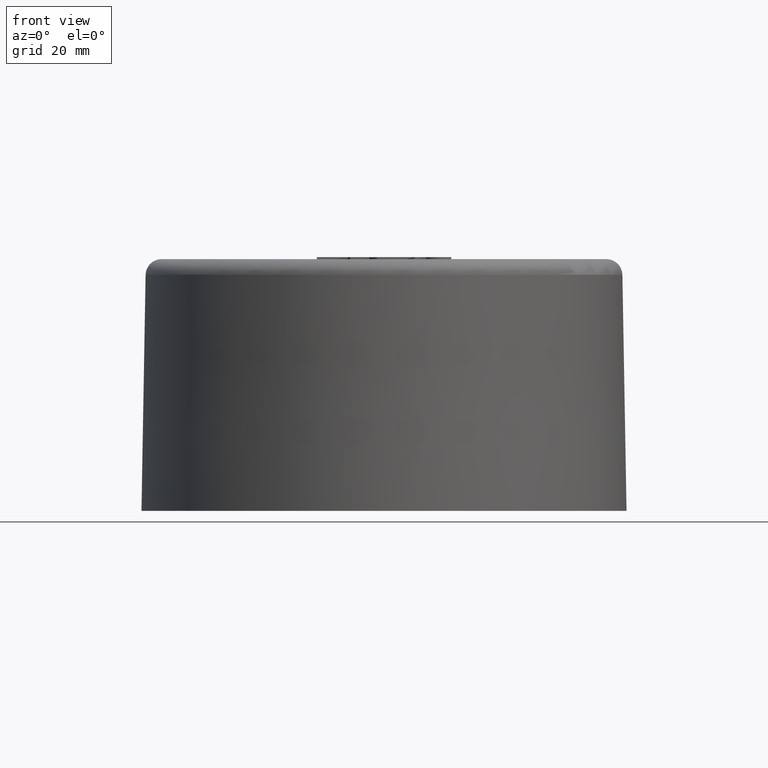
[diagram: clean part render]
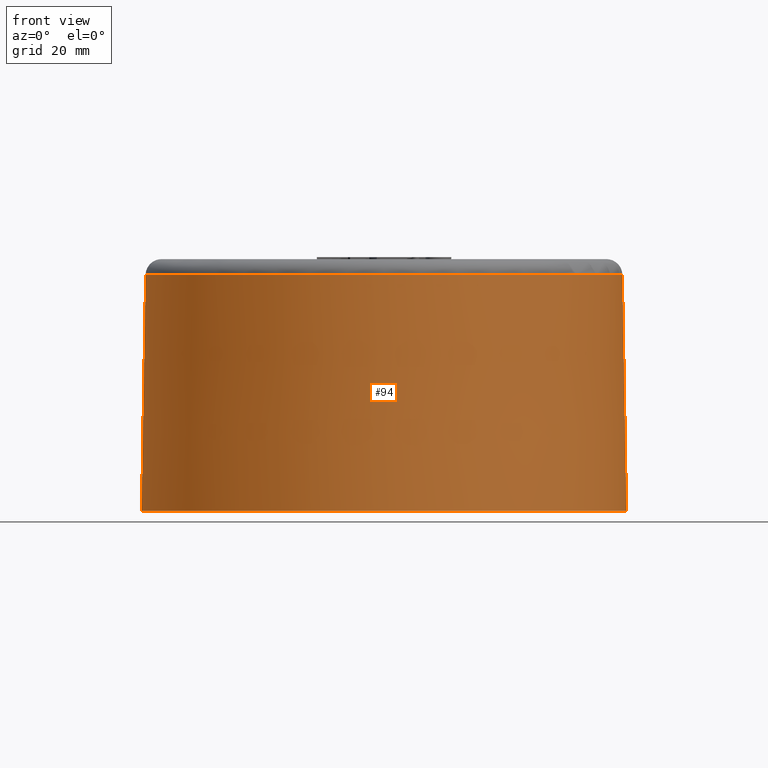
[diagram: same view with one face highlighted and labeled with its STEP entity id]
A machine part, front view. The second image highlights one B-rep face of the part: STEP entity #94.
In plain terms, the highlighted conical surface has half-angle 1 deg.
Its self-contained STEP definition (entity closure, byte-faithful):
#94 = ADVANCED_FACE( '', ( #210, #211 ), #212, .T. );
#210 = FACE_BOUND( '', #397, .T. );
#211 = FACE_OUTER_BOUND( '', #398, .T. );
#212 = CONICAL_SURFACE( '', #399, 60.6741089319782, 0.0174532925199433 );
#397 = EDGE_LOOP( '', ( #745 ) );
#398 = EDGE_LOOP( '', ( #746 ) );
#399 = AXIS2_PLACEMENT_3D( '', #747, #748, #749 );
#745 = ORIENTED_EDGE( '', *, *, #1343, .F. );
#746 = ORIENTED_EDGE( '', *, *, #1301, .T. );
#747 = CARTESIAN_POINT( '', ( 1.69948271264483E-030, 0.000000000000000, -2.77555756156289E-014 ) );
#748 = DIRECTION( '', ( 6.12303176911189E-017, 0.000000000000000, -1.00000000000000 ) );
#749 = DIRECTION( '', ( -1.00000000000000, 0.000000000000000, -6.12303176911189E-017 ) );
#1301 = EDGE_CURVE( '', #1564, #1564, #1565, .T. );
#1343 = EDGE_CURVE( '', #1634, #1634, #1635, .T. );
#1564 = VERTEX_POINT( '', #2042 );
#1565 = CIRCLE( '', #2043, 60.6741089319782 );
#1634 = VERTEX_POINT( '', #2222 );
#1635 = CIRCLE( '', #2223, 59.6430415696633 );
#2042 = CARTESIAN_POINT( '', ( 60.6741089319782, 0.000000000000000, -2.40404806500983E-014 ) );
#2043 = AXIS2_PLACEMENT_3D( '', #2505, #2506, #2507 );
#2222 = CARTESIAN_POINT( '', ( 59.6430415696633, 0.000000000000000, 59.0698096257491 ) );
#2223 = AXIS2_PLACEMENT_3D( '', #2529, #2530, #2531 );
#2505 = CARTESIAN_POINT( '', ( 1.69948271264483E-030, 0.000000000000000, -2.77555756156289E-014 ) );
#2506 = DIRECTION( '', ( -6.12303176911189E-017, 0.000000000000000, 1.00000000000000 ) );
#2507 = DIRECTION( '', ( 1.00000000000000, 0.000000000000000, 6.12303176911189E-017 ) );
#2529 = CARTESIAN_POINT( '', ( -3.61686320933853E-015, 0.000000000000000, 59.0698096257491 ) );
#2530 = DIRECTION( '', ( -6.12303176911189E-017, 0.000000000000000, 1.00000000000000 ) );
#2531 = DIRECTION( '', ( 1.00000000000000, 0.000000000000000, 6.12303176911189E-017 ) );